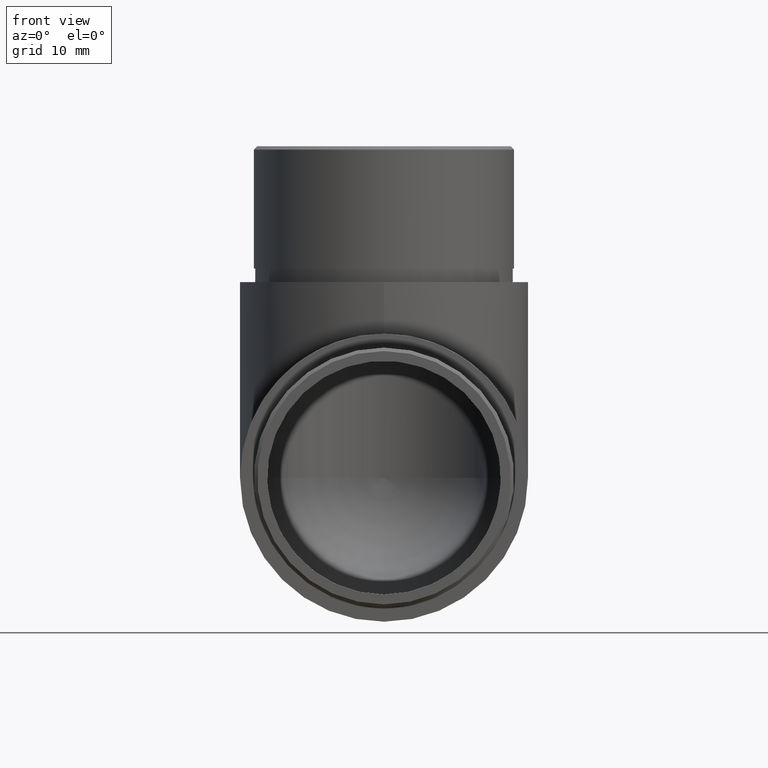
[diagram: clean part render]
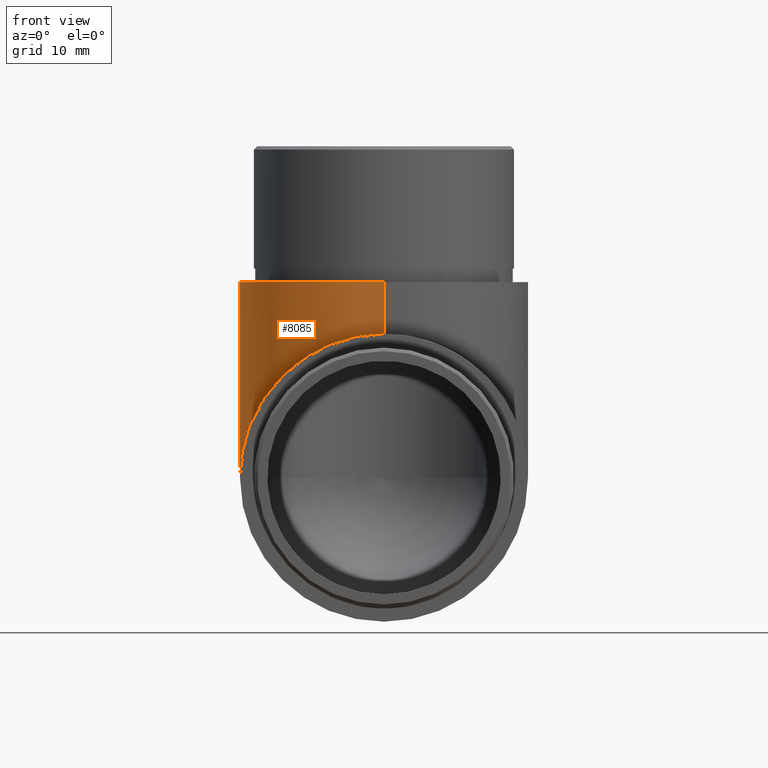
[diagram: same view with one face highlighted and labeled with its STEP entity id]
A machine part, front view. The second image highlights one B-rep face of the part: STEP entity #8085.
In plain terms, the highlighted cylindrical surface (partial cylindrical patch) has radius 21.2 mm, axis along (0, 0, 1).
Its self-contained STEP definition (entity closure, byte-faithful):
#226 = ORIENTED_EDGE ( 'NONE', *, *, #8133, .F. ) ;
#359 = CARTESIAN_POINT ( 'NONE',  ( -21.19999999999999200, 16.38132752230962600, 33.61867247769037400 ) ) ;
#1180 = CARTESIAN_POINT ( 'NONE',  ( 3.469446951953614200E-015, 28.80000000000000800, 50.00000000000000000 ) ) ;
#1538 = DIRECTION ( 'NONE',  ( 0.0000000000000000000, 0.0000000000000000000, 1.000000000000000000 ) ) ;
#2247 = CARTESIAN_POINT ( 'NONE',  ( -21.19999999999999600, 28.80000000000001100, 21.19999999999999200 ) ) ;
#2550 = CIRCLE ( 'NONE', #3732, 21.19999999999999900 ) ;
#2625 = CARTESIAN_POINT ( 'NONE',  ( 3.469446951953614200E-015, 7.600000000000009400, 42.39999999999999100 ) ) ;
#2675 = CARTESIAN_POINT ( 'NONE',  ( 3.469446951953614200E-015, 28.80000000000000800, 1.818672477690387500 ) ) ;
#2962 = VECTOR ( 'NONE', #12107, 1000.000000000000000 ) ;
#3140 = CARTESIAN_POINT ( 'NONE',  ( -21.19999999999999600, 28.80000000000001100, 21.19999999999999200 ) ) ;
#3228 =( BOUNDED_CURVE ( )  B_SPLINE_CURVE ( 3, ( #6972, #6094, #359, #2247 ),
 .UNSPECIFIED., .F., .F. ) 
 B_SPLINE_CURVE_WITH_KNOTS ( ( 4, 4 ),
 ( 2.454797371665293100E-016, 1.570796326794896800 ),
 .UNSPECIFIED. ) 
 CURVE ( )  GEOMETRIC_REPRESENTATION_ITEM ( )  RATIONAL_B_SPLINE_CURVE ( ( 1.000000000000000000, 0.8047378541243649400, 0.8047378541243649400, 1.000000000000000000 ) ) 
 REPRESENTATION_ITEM ( '' )  );
#3732 = AXIS2_PLACEMENT_3D ( 'NONE', #1180, #5314, #5225 ) ;
#4802 = EDGE_CURVE ( 'NONE', #6949, #7990, #2550, .T. ) ;
#5225 = DIRECTION ( 'NONE',  ( 1.000000000000000000, 0.0000000000000000000, 0.0000000000000000000 ) ) ;
#5314 = DIRECTION ( 'NONE',  ( 0.0000000000000000000, 0.0000000000000000000, 1.000000000000000000 ) ) ;
#5403 = DIRECTION ( 'NONE',  ( -0.0000000000000000000, -0.0000000000000000000, -1.000000000000000000 ) ) ;
#6015 = VERTEX_POINT ( 'NONE', #6670 ) ;
#6094 = CARTESIAN_POINT ( 'NONE',  ( -12.41867247769038200, 7.600000000000012100, 42.39999999999998400 ) ) ;
#6670 = CARTESIAN_POINT ( 'NONE',  ( -1.734723475976807100E-015, 7.600000000000009400, 42.39999999999999100 ) ) ;
#6949 = VERTEX_POINT ( 'NONE', #8767 ) ;
#6956 = ORIENTED_EDGE ( 'NONE', *, *, #10035, .F. ) ;
#6972 = CARTESIAN_POINT ( 'NONE',  ( -1.734723475976807100E-015, 7.600000000000009400, 42.39999999999999100 ) ) ;
#7426 = EDGE_LOOP ( 'NONE', ( #10077, #12209, #6956, #226 ) ) ;
#7715 = FACE_OUTER_BOUND ( 'NONE', #7426, .T. ) ;
#7990 = VERTEX_POINT ( 'NONE', #11649 ) ;
#8085 = ADVANCED_FACE ( 'NONE', ( #7715 ), #10094, .T. ) ;
#8133 = EDGE_CURVE ( 'NONE', #7990, #6015, #8756, .T. ) ;
#8231 = DIRECTION ( 'NONE',  ( 1.000000000000000000, 0.0000000000000000000, 0.0000000000000000000 ) ) ;
#8548 = EDGE_CURVE ( 'NONE', #6949, #12220, #9777, .T. ) ;
#8756 = LINE ( 'NONE', #2625, #2962 ) ;
#8767 = CARTESIAN_POINT ( 'NONE',  ( -21.19999999999999600, 28.80000000000000800, 50.00000000000000000 ) ) ;
#9777 = LINE ( 'NONE', #12090, #11423 ) ;
#10035 = EDGE_CURVE ( 'NONE', #6015, #12220, #3228, .T. ) ;
#10077 = ORIENTED_EDGE ( 'NONE', *, *, #4802, .F. ) ;
#10094 = CYLINDRICAL_SURFACE ( 'NONE', #10578, 21.19999999999999900 ) ;
#10578 = AXIS2_PLACEMENT_3D ( 'NONE', #2675, #1538, #8231 ) ;
#11423 = VECTOR ( 'NONE', #5403, 1000.000000000000000 ) ;
#11649 = CARTESIAN_POINT ( 'NONE',  ( -3.469446951953614200E-015, 7.600000000000009400, 50.00000000000000000 ) ) ;
#12090 = CARTESIAN_POINT ( 'NONE',  ( -21.19999999999999600, 28.80000000000000800, 1.818672477690387500 ) ) ;
#12107 = DIRECTION ( 'NONE',  ( -0.0000000000000000000, -0.0000000000000000000, -1.000000000000000000 ) ) ;
#12209 = ORIENTED_EDGE ( 'NONE', *, *, #8548, .T. ) ;
#12220 = VERTEX_POINT ( 'NONE', #3140 ) ;